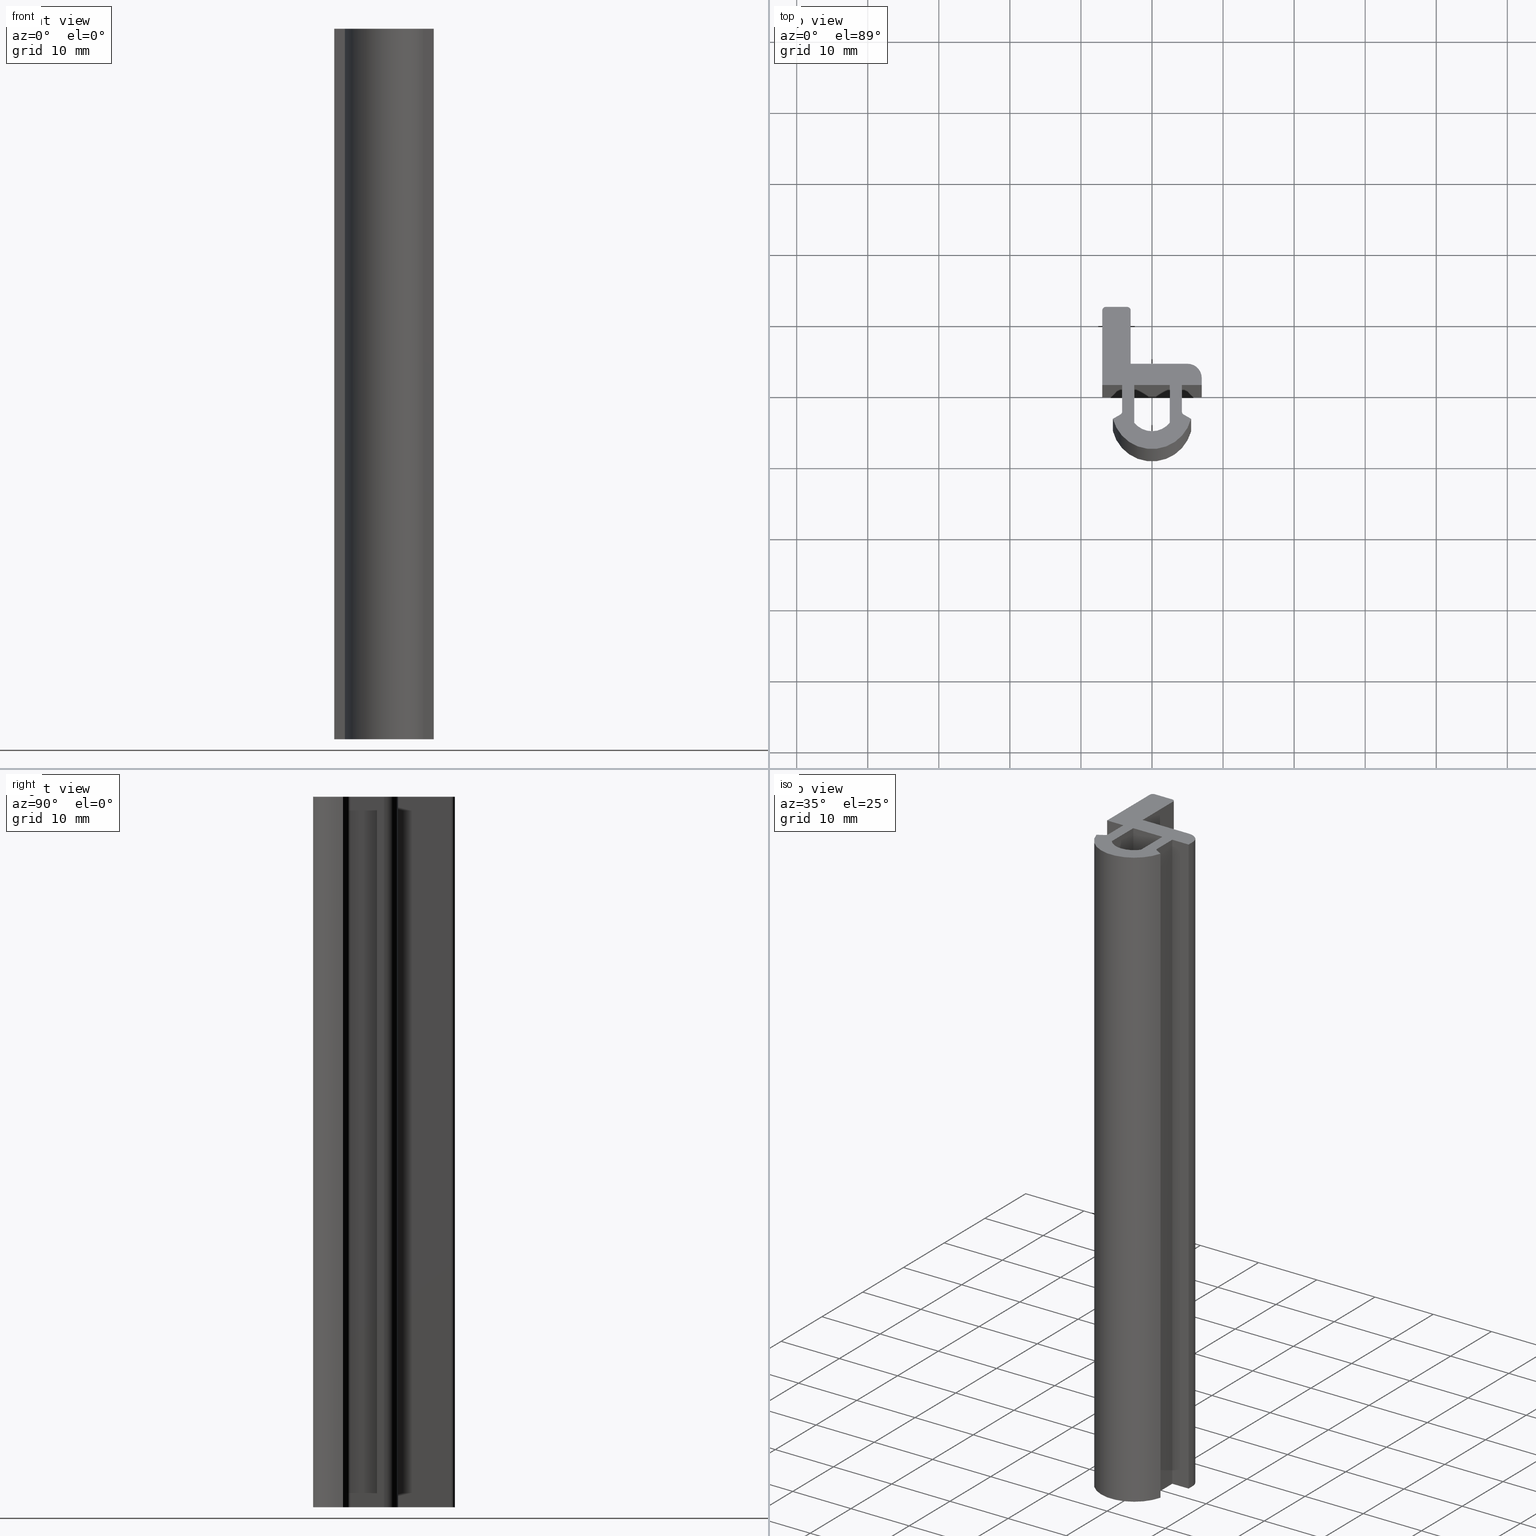
[diagram: canonical four-view strip — front | top / right | iso, engineering-drawing reading convention]
A machine part, canonical four-view strip (front | top / right | iso — engineering-drawing reading convention). The complete STEP part file that produces these views, byte-faithful:
ISO-10303-21;
HEADER;
/* Generated by software containing ST-Developer
 * from STEP Tools, Inc. (www.steptools.com) 
 */

FILE_DESCRIPTION(
/* description */ ('GUARNIZIONE GRIGIA'),
/* implementation_level */ '2;1');

FILE_NAME(
/* name */ 
'Q:\\Catalogo\\2_Accessori Dierre\\Per Download Web e catalogo cartace
o\\CATALOGO GUARNIZIONI E PROFILI\\PAGINA 82\\DGUCA0000047.stp',
/* time_stamp */ '2018-11-08T15:02:06+01:00',
/* author */ ('fzagni'),
/* organization */ (''),
/* preprocessor_version */ 'ST-DEVELOPER v16.1',
/* originating_system */ 'Autodesk Inventor 2016',
/* authorisation */ '');

FILE_SCHEMA (('AUTOMOTIVE_DESIGN { 1 0 10303 214 3 1 1 }'));
ENDSEC;

DATA;
#10=MECHANICAL_DESIGN_GEOMETRIC_PRESENTATION_REPRESENTATION('',(#13),#750);
#11=SHAPE_REPRESENTATION_RELATIONSHIP('SRR','None',#759,#12);
#12=ADVANCED_BREP_SHAPE_REPRESENTATION('',(#14),#749);
#13=STYLED_ITEM('',(#768),#14);
#14=MANIFOLD_SOLID_BREP('Solido1',#454);
#15=FACE_BOUND('',#62,.T.);
#16=FACE_BOUND('',#80,.T.);
#17=PLANE('',#459);
#18=PLANE('',#463);
#19=PLANE('',#467);
#20=PLANE('',#472);
#21=PLANE('',#477);
#22=PLANE('',#478);
#23=PLANE('',#479);
#24=PLANE('',#482);
#25=PLANE('',#483);
#26=PLANE('',#484);
#27=PLANE('',#485);
#28=PLANE('',#486);
#29=PLANE('',#489);
#30=PLANE('',#490);
#31=PLANE('',#491);
#32=PLANE('',#492);
#33=FACE_OUTER_BOUND('',#56,.T.);
#34=FACE_OUTER_BOUND('',#57,.T.);
#35=FACE_OUTER_BOUND('',#58,.T.);
#36=FACE_OUTER_BOUND('',#59,.T.);
#37=FACE_OUTER_BOUND('',#60,.T.);
#38=FACE_OUTER_BOUND('',#61,.T.);
#39=FACE_OUTER_BOUND('',#63,.T.);
#40=FACE_OUTER_BOUND('',#64,.T.);
#41=FACE_OUTER_BOUND('',#65,.T.);
#42=FACE_OUTER_BOUND('',#66,.T.);
#43=FACE_OUTER_BOUND('',#67,.T.);
#44=FACE_OUTER_BOUND('',#68,.T.);
#45=FACE_OUTER_BOUND('',#69,.T.);
#46=FACE_OUTER_BOUND('',#70,.T.);
#47=FACE_OUTER_BOUND('',#71,.T.);
#48=FACE_OUTER_BOUND('',#72,.T.);
#49=FACE_OUTER_BOUND('',#73,.T.);
#50=FACE_OUTER_BOUND('',#74,.T.);
#51=FACE_OUTER_BOUND('',#75,.T.);
#52=FACE_OUTER_BOUND('',#76,.T.);
#53=FACE_OUTER_BOUND('',#77,.T.);
#54=FACE_OUTER_BOUND('',#78,.T.);
#55=FACE_OUTER_BOUND('',#79,.T.);
#56=EDGE_LOOP('',(#298,#299,#300,#301));
#57=EDGE_LOOP('',(#302,#303,#304,#305));
#58=EDGE_LOOP('',(#306,#307,#308,#309));
#59=EDGE_LOOP('',(#310,#311,#312,#313));
#60=EDGE_LOOP('',(#314,#315,#316,#317));
#61=EDGE_LOOP('',(#318,#319,#320,#321,#322,#323,#324,#325,#326,#327,#328,
#329,#330,#331,#332,#333,#334));
#62=EDGE_LOOP('',(#335,#336,#337,#338));
#63=EDGE_LOOP('',(#339,#340,#341,#342));
#64=EDGE_LOOP('',(#343,#344,#345,#346));
#65=EDGE_LOOP('',(#347,#348,#349,#350));
#66=EDGE_LOOP('',(#351,#352,#353,#354));
#67=EDGE_LOOP('',(#355,#356,#357,#358));
#68=EDGE_LOOP('',(#359,#360,#361,#362));
#69=EDGE_LOOP('',(#363,#364,#365,#366));
#70=EDGE_LOOP('',(#367,#368,#369,#370));
#71=EDGE_LOOP('',(#371,#372,#373,#374));
#72=EDGE_LOOP('',(#375,#376,#377,#378));
#73=EDGE_LOOP('',(#379,#380,#381,#382));
#74=EDGE_LOOP('',(#383,#384,#385,#386));
#75=EDGE_LOOP('',(#387,#388,#389,#390));
#76=EDGE_LOOP('',(#391,#392,#393,#394));
#77=EDGE_LOOP('',(#395,#396,#397,#398));
#78=EDGE_LOOP('',(#399,#400,#401,#402));
#79=EDGE_LOOP('',(#403,#404,#405,#406,#407,#408,#409,#410,#411,#412,#413,
#414,#415,#416,#417,#418,#419));
#80=EDGE_LOOP('',(#420,#421,#422,#423));
#81=LINE('',#624,#130);
#82=LINE('',#627,#131);
#83=LINE('',#630,#132);
#84=LINE('',#632,#133);
#85=LINE('',#633,#134);
#86=LINE('',#639,#135);
#87=LINE('',#642,#136);
#88=LINE('',#645,#137);
#89=LINE('',#647,#138);
#90=LINE('',#648,#139);
#91=LINE('',#654,#140);
#92=LINE('',#657,#141);
#93=LINE('',#660,#142);
#94=LINE('',#664,#143);
#95=LINE('',#666,#144);
#96=LINE('',#670,#145);
#97=LINE('',#671,#146);
#98=LINE('',#673,#147);
#99=LINE('',#676,#148);
#100=LINE('',#678,#149);
#101=LINE('',#679,#150);
#102=LINE('',#682,#151);
#103=LINE('',#684,#152);
#104=LINE('',#687,#153);
#105=LINE('',#690,#154);
#106=LINE('',#691,#155);
#107=LINE('',#695,#156);
#108=LINE('',#700,#157);
#109=LINE('',#701,#158);
#110=LINE('',#704,#159);
#111=LINE('',#705,#160);
#112=LINE('',#708,#161);
#113=LINE('',#710,#162);
#114=LINE('',#711,#163);
#115=LINE('',#714,#164);
#116=LINE('',#715,#165);
#117=LINE('',#718,#166);
#118=LINE('',#721,#167);
#119=LINE('',#724,#168);
#120=LINE('',#725,#169);
#121=LINE('',#727,#170);
#122=LINE('',#729,#171);
#123=LINE('',#732,#172);
#124=LINE('',#733,#173);
#125=LINE('',#738,#174);
#126=LINE('',#739,#175);
#127=LINE('',#742,#176);
#128=LINE('',#743,#177);
#129=LINE('',#745,#178);
#130=VECTOR('',#499,100.);
#131=VECTOR('',#502,100.);
#132=VECTOR('',#505,1.21243556529822);
#133=VECTOR('',#506,100.);
#134=VECTOR('',#507,1.21243556529822);
#135=VECTOR('',#512,100.);
#136=VECTOR('',#515,100.);
#137=VECTOR('',#518,3.71132486540519);
#138=VECTOR('',#519,100.);
#139=VECTOR('',#520,3.71132486540519);
#140=VECTOR('',#525,100.);
#141=VECTOR('',#528,100.);
#142=VECTOR('',#531,3.);
#143=VECTOR('',#534,7.5);
#144=VECTOR('',#535,8.);
#145=VECTOR('',#538,1.);
#146=VECTOR('',#539,2.8);
#147=VECTOR('',#540,1.21243556529821);
#148=VECTOR('',#543,3.71132486540519);
#149=VECTOR('',#544,2.8);
#150=VECTOR('',#545,10.5);
#151=VECTOR('',#546,5.);
#152=VECTOR('',#547,5.28777142304358);
#153=VECTOR('',#550,5.28777142304358);
#154=VECTOR('',#553,3.);
#155=VECTOR('',#554,100.);
#156=VECTOR('',#559,100.);
#157=VECTOR('',#564,100.);
#158=VECTOR('',#565,100.);
#159=VECTOR('',#568,1.);
#160=VECTOR('',#569,100.);
#161=VECTOR('',#572,100.);
#162=VECTOR('',#573,5.);
#163=VECTOR('',#574,100.);
#164=VECTOR('',#577,100.);
#165=VECTOR('',#578,5.28777142304358);
#166=VECTOR('',#581,100.);
#167=VECTOR('',#586,5.28777142304358);
#168=VECTOR('',#589,7.5);
#169=VECTOR('',#590,100.);
#170=VECTOR('',#593,8.);
#171=VECTOR('',#596,2.8);
#172=VECTOR('',#599,1.21243556529821);
#173=VECTOR('',#600,100.);
#174=VECTOR('',#607,3.71132486540519);
#175=VECTOR('',#608,100.);
#176=VECTOR('',#611,2.8);
#177=VECTOR('',#612,100.);
#178=VECTOR('',#615,10.5);
#179=CIRCLE('',#457,0.5);
#180=CIRCLE('',#458,0.5);
#181=CIRCLE('',#461,0.5);
#182=CIRCLE('',#462,0.5);
#183=CIRCLE('',#465,0.5);
#184=CIRCLE('',#466,0.5);
#185=CIRCLE('',#468,0.5);
#186=CIRCLE('',#469,2.);
#187=CIRCLE('',#470,5.68401094873188);
#188=CIRCLE('',#471,3.18401094873187);
#189=CIRCLE('',#474,0.5);
#190=CIRCLE('',#476,2.);
#191=CIRCLE('',#481,3.18401094873187);
#192=CIRCLE('',#488,5.68401094873188);
#193=VERTEX_POINT('',#620);
#194=VERTEX_POINT('',#621);
#195=VERTEX_POINT('',#623);
#196=VERTEX_POINT('',#625);
#197=VERTEX_POINT('',#629);
#198=VERTEX_POINT('',#631);
#199=VERTEX_POINT('',#635);
#200=VERTEX_POINT('',#636);
#201=VERTEX_POINT('',#638);
#202=VERTEX_POINT('',#640);
#203=VERTEX_POINT('',#644);
#204=VERTEX_POINT('',#646);
#205=VERTEX_POINT('',#650);
#206=VERTEX_POINT('',#651);
#207=VERTEX_POINT('',#653);
#208=VERTEX_POINT('',#655);
#209=VERTEX_POINT('',#659);
#210=VERTEX_POINT('',#661);
#211=VERTEX_POINT('',#663);
#212=VERTEX_POINT('',#665);
#213=VERTEX_POINT('',#667);
#214=VERTEX_POINT('',#669);
#215=VERTEX_POINT('',#672);
#216=VERTEX_POINT('',#675);
#217=VERTEX_POINT('',#677);
#218=VERTEX_POINT('',#680);
#219=VERTEX_POINT('',#681);
#220=VERTEX_POINT('',#683);
#221=VERTEX_POINT('',#685);
#222=VERTEX_POINT('',#689);
#223=VERTEX_POINT('',#693);
#224=VERTEX_POINT('',#697);
#225=VERTEX_POINT('',#698);
#226=VERTEX_POINT('',#703);
#227=VERTEX_POINT('',#707);
#228=VERTEX_POINT('',#709);
#229=VERTEX_POINT('',#713);
#230=VERTEX_POINT('',#717);
#231=VERTEX_POINT('',#723);
#232=VERTEX_POINT('',#731);
#233=VERTEX_POINT('',#737);
#234=VERTEX_POINT('',#741);
#235=EDGE_CURVE('',#193,#194,#179,.T.);
#236=EDGE_CURVE('',#194,#195,#81,.T.);
#237=EDGE_CURVE('',#195,#196,#180,.T.);
#238=EDGE_CURVE('',#196,#193,#82,.T.);
#239=EDGE_CURVE('',#197,#194,#83,.T.);
#240=EDGE_CURVE('',#197,#198,#84,.T.);
#241=EDGE_CURVE('',#195,#198,#85,.T.);
#242=EDGE_CURVE('',#199,#200,#181,.T.);
#243=EDGE_CURVE('',#200,#201,#86,.T.);
#244=EDGE_CURVE('',#201,#202,#182,.T.);
#245=EDGE_CURVE('',#202,#199,#87,.T.);
#246=EDGE_CURVE('',#203,#200,#88,.T.);
#247=EDGE_CURVE('',#203,#204,#89,.T.);
#248=EDGE_CURVE('',#201,#204,#90,.T.);
#249=EDGE_CURVE('',#205,#206,#183,.T.);
#250=EDGE_CURVE('',#206,#207,#91,.T.);
#251=EDGE_CURVE('',#207,#208,#184,.T.);
#252=EDGE_CURVE('',#208,#205,#92,.T.);
#253=EDGE_CURVE('',#207,#209,#93,.T.);
#254=EDGE_CURVE('',#210,#209,#185,.T.);
#255=EDGE_CURVE('',#210,#211,#94,.T.);
#256=EDGE_CURVE('',#211,#212,#95,.T.);
#257=EDGE_CURVE('',#213,#212,#186,.T.);
#258=EDGE_CURVE('',#213,#214,#96,.T.);
#259=EDGE_CURVE('',#214,#203,#97,.T.);
#260=EDGE_CURVE('',#199,#215,#98,.T.);
#261=EDGE_CURVE('',#215,#197,#187,.T.);
#262=EDGE_CURVE('',#193,#216,#99,.T.);
#263=EDGE_CURVE('',#216,#217,#100,.T.);
#264=EDGE_CURVE('',#217,#208,#101,.T.);
#265=EDGE_CURVE('',#218,#219,#102,.T.);
#266=EDGE_CURVE('',#219,#220,#103,.T.);
#267=EDGE_CURVE('',#220,#221,#188,.T.);
#268=EDGE_CURVE('',#221,#218,#104,.T.);
#269=EDGE_CURVE('',#222,#206,#105,.T.);
#270=EDGE_CURVE('',#209,#222,#106,.T.);
#271=EDGE_CURVE('',#222,#223,#189,.T.);
#272=EDGE_CURVE('',#223,#210,#107,.T.);
#273=EDGE_CURVE('',#224,#225,#190,.T.);
#274=EDGE_CURVE('',#225,#213,#108,.T.);
#275=EDGE_CURVE('',#212,#224,#109,.T.);
#276=EDGE_CURVE('',#226,#225,#110,.T.);
#277=EDGE_CURVE('',#214,#226,#111,.T.);
#278=EDGE_CURVE('',#218,#227,#112,.T.);
#279=EDGE_CURVE('',#228,#227,#113,.T.);
#280=EDGE_CURVE('',#219,#228,#114,.T.);
#281=EDGE_CURVE('',#221,#229,#115,.T.);
#282=EDGE_CURVE('',#227,#229,#116,.T.);
#283=EDGE_CURVE('',#220,#230,#117,.T.);
#284=EDGE_CURVE('',#229,#230,#191,.T.);
#285=EDGE_CURVE('',#230,#228,#118,.T.);
#286=EDGE_CURVE('',#231,#223,#119,.T.);
#287=EDGE_CURVE('',#211,#231,#120,.T.);
#288=EDGE_CURVE('',#224,#231,#121,.T.);
#289=EDGE_CURVE('',#204,#226,#122,.T.);
#290=EDGE_CURVE('',#232,#202,#123,.T.);
#291=EDGE_CURVE('',#215,#232,#124,.T.);
#292=EDGE_CURVE('',#198,#232,#192,.T.);
#293=EDGE_CURVE('',#233,#196,#125,.T.);
#294=EDGE_CURVE('',#216,#233,#126,.T.);
#295=EDGE_CURVE('',#234,#233,#127,.T.);
#296=EDGE_CURVE('',#217,#234,#128,.T.);
#297=EDGE_CURVE('',#205,#234,#129,.T.);
#298=ORIENTED_EDGE('',*,*,#235,.T.);
#299=ORIENTED_EDGE('',*,*,#236,.T.);
#300=ORIENTED_EDGE('',*,*,#237,.T.);
#301=ORIENTED_EDGE('',*,*,#238,.T.);
#302=ORIENTED_EDGE('',*,*,#236,.F.);
#303=ORIENTED_EDGE('',*,*,#239,.F.);
#304=ORIENTED_EDGE('',*,*,#240,.T.);
#305=ORIENTED_EDGE('',*,*,#241,.F.);
#306=ORIENTED_EDGE('',*,*,#242,.T.);
#307=ORIENTED_EDGE('',*,*,#243,.T.);
#308=ORIENTED_EDGE('',*,*,#244,.T.);
#309=ORIENTED_EDGE('',*,*,#245,.T.);
#310=ORIENTED_EDGE('',*,*,#243,.F.);
#311=ORIENTED_EDGE('',*,*,#246,.F.);
#312=ORIENTED_EDGE('',*,*,#247,.T.);
#313=ORIENTED_EDGE('',*,*,#248,.F.);
#314=ORIENTED_EDGE('',*,*,#249,.T.);
#315=ORIENTED_EDGE('',*,*,#250,.T.);
#316=ORIENTED_EDGE('',*,*,#251,.T.);
#317=ORIENTED_EDGE('',*,*,#252,.T.);
#318=ORIENTED_EDGE('',*,*,#251,.F.);
#319=ORIENTED_EDGE('',*,*,#253,.T.);
#320=ORIENTED_EDGE('',*,*,#254,.F.);
#321=ORIENTED_EDGE('',*,*,#255,.T.);
#322=ORIENTED_EDGE('',*,*,#256,.T.);
#323=ORIENTED_EDGE('',*,*,#257,.F.);
#324=ORIENTED_EDGE('',*,*,#258,.T.);
#325=ORIENTED_EDGE('',*,*,#259,.T.);
#326=ORIENTED_EDGE('',*,*,#246,.T.);
#327=ORIENTED_EDGE('',*,*,#242,.F.);
#328=ORIENTED_EDGE('',*,*,#260,.T.);
#329=ORIENTED_EDGE('',*,*,#261,.T.);
#330=ORIENTED_EDGE('',*,*,#239,.T.);
#331=ORIENTED_EDGE('',*,*,#235,.F.);
#332=ORIENTED_EDGE('',*,*,#262,.T.);
#333=ORIENTED_EDGE('',*,*,#263,.T.);
#334=ORIENTED_EDGE('',*,*,#264,.T.);
#335=ORIENTED_EDGE('',*,*,#265,.T.);
#336=ORIENTED_EDGE('',*,*,#266,.T.);
#337=ORIENTED_EDGE('',*,*,#267,.T.);
#338=ORIENTED_EDGE('',*,*,#268,.T.);
#339=ORIENTED_EDGE('',*,*,#250,.F.);
#340=ORIENTED_EDGE('',*,*,#269,.F.);
#341=ORIENTED_EDGE('',*,*,#270,.F.);
#342=ORIENTED_EDGE('',*,*,#253,.F.);
#343=ORIENTED_EDGE('',*,*,#271,.T.);
#344=ORIENTED_EDGE('',*,*,#272,.T.);
#345=ORIENTED_EDGE('',*,*,#254,.T.);
#346=ORIENTED_EDGE('',*,*,#270,.T.);
#347=ORIENTED_EDGE('',*,*,#273,.T.);
#348=ORIENTED_EDGE('',*,*,#274,.T.);
#349=ORIENTED_EDGE('',*,*,#257,.T.);
#350=ORIENTED_EDGE('',*,*,#275,.T.);
#351=ORIENTED_EDGE('',*,*,#274,.F.);
#352=ORIENTED_EDGE('',*,*,#276,.F.);
#353=ORIENTED_EDGE('',*,*,#277,.F.);
#354=ORIENTED_EDGE('',*,*,#258,.F.);
#355=ORIENTED_EDGE('',*,*,#265,.F.);
#356=ORIENTED_EDGE('',*,*,#278,.T.);
#357=ORIENTED_EDGE('',*,*,#279,.F.);
#358=ORIENTED_EDGE('',*,*,#280,.F.);
#359=ORIENTED_EDGE('',*,*,#268,.F.);
#360=ORIENTED_EDGE('',*,*,#281,.T.);
#361=ORIENTED_EDGE('',*,*,#282,.F.);
#362=ORIENTED_EDGE('',*,*,#278,.F.);
#363=ORIENTED_EDGE('',*,*,#267,.F.);
#364=ORIENTED_EDGE('',*,*,#283,.T.);
#365=ORIENTED_EDGE('',*,*,#284,.F.);
#366=ORIENTED_EDGE('',*,*,#281,.F.);
#367=ORIENTED_EDGE('',*,*,#266,.F.);
#368=ORIENTED_EDGE('',*,*,#280,.T.);
#369=ORIENTED_EDGE('',*,*,#285,.F.);
#370=ORIENTED_EDGE('',*,*,#283,.F.);
#371=ORIENTED_EDGE('',*,*,#272,.F.);
#372=ORIENTED_EDGE('',*,*,#286,.F.);
#373=ORIENTED_EDGE('',*,*,#287,.F.);
#374=ORIENTED_EDGE('',*,*,#255,.F.);
#375=ORIENTED_EDGE('',*,*,#275,.F.);
#376=ORIENTED_EDGE('',*,*,#256,.F.);
#377=ORIENTED_EDGE('',*,*,#287,.T.);
#378=ORIENTED_EDGE('',*,*,#288,.F.);
#379=ORIENTED_EDGE('',*,*,#259,.F.);
#380=ORIENTED_EDGE('',*,*,#277,.T.);
#381=ORIENTED_EDGE('',*,*,#289,.F.);
#382=ORIENTED_EDGE('',*,*,#247,.F.);
#383=ORIENTED_EDGE('',*,*,#245,.F.);
#384=ORIENTED_EDGE('',*,*,#290,.F.);
#385=ORIENTED_EDGE('',*,*,#291,.F.);
#386=ORIENTED_EDGE('',*,*,#260,.F.);
#387=ORIENTED_EDGE('',*,*,#261,.F.);
#388=ORIENTED_EDGE('',*,*,#291,.T.);
#389=ORIENTED_EDGE('',*,*,#292,.F.);
#390=ORIENTED_EDGE('',*,*,#240,.F.);
#391=ORIENTED_EDGE('',*,*,#238,.F.);
#392=ORIENTED_EDGE('',*,*,#293,.F.);
#393=ORIENTED_EDGE('',*,*,#294,.F.);
#394=ORIENTED_EDGE('',*,*,#262,.F.);
#395=ORIENTED_EDGE('',*,*,#263,.F.);
#396=ORIENTED_EDGE('',*,*,#294,.T.);
#397=ORIENTED_EDGE('',*,*,#295,.F.);
#398=ORIENTED_EDGE('',*,*,#296,.F.);
#399=ORIENTED_EDGE('',*,*,#252,.F.);
#400=ORIENTED_EDGE('',*,*,#264,.F.);
#401=ORIENTED_EDGE('',*,*,#296,.T.);
#402=ORIENTED_EDGE('',*,*,#297,.F.);
#403=ORIENTED_EDGE('',*,*,#249,.F.);
#404=ORIENTED_EDGE('',*,*,#297,.T.);
#405=ORIENTED_EDGE('',*,*,#295,.T.);
#406=ORIENTED_EDGE('',*,*,#293,.T.);
#407=ORIENTED_EDGE('',*,*,#237,.F.);
#408=ORIENTED_EDGE('',*,*,#241,.T.);
#409=ORIENTED_EDGE('',*,*,#292,.T.);
#410=ORIENTED_EDGE('',*,*,#290,.T.);
#411=ORIENTED_EDGE('',*,*,#244,.F.);
#412=ORIENTED_EDGE('',*,*,#248,.T.);
#413=ORIENTED_EDGE('',*,*,#289,.T.);
#414=ORIENTED_EDGE('',*,*,#276,.T.);
#415=ORIENTED_EDGE('',*,*,#273,.F.);
#416=ORIENTED_EDGE('',*,*,#288,.T.);
#417=ORIENTED_EDGE('',*,*,#286,.T.);
#418=ORIENTED_EDGE('',*,*,#271,.F.);
#419=ORIENTED_EDGE('',*,*,#269,.T.);
#420=ORIENTED_EDGE('',*,*,#279,.T.);
#421=ORIENTED_EDGE('',*,*,#282,.T.);
#422=ORIENTED_EDGE('',*,*,#284,.T.);
#423=ORIENTED_EDGE('',*,*,#285,.T.);
#424=CYLINDRICAL_SURFACE('',#456,0.5);
#425=CYLINDRICAL_SURFACE('',#460,0.5);
#426=CYLINDRICAL_SURFACE('',#464,0.5);
#427=CYLINDRICAL_SURFACE('',#473,0.5);
#428=CYLINDRICAL_SURFACE('',#475,2.);
#429=CYLINDRICAL_SURFACE('',#480,3.18401094873187);
#430=CYLINDRICAL_SURFACE('',#487,5.68401094873188);
#431=ADVANCED_FACE('',(#33),#424,.F.);
#432=ADVANCED_FACE('',(#34),#17,.T.);
#433=ADVANCED_FACE('',(#35),#425,.F.);
#434=ADVANCED_FACE('',(#36),#18,.T.);
#435=ADVANCED_FACE('',(#37),#426,.T.);
#436=ADVANCED_FACE('',(#38,#15),#19,.F.);
#437=ADVANCED_FACE('',(#39),#20,.T.);
#438=ADVANCED_FACE('',(#40),#427,.T.);
#439=ADVANCED_FACE('',(#41),#428,.T.);
#440=ADVANCED_FACE('',(#42),#21,.T.);
#441=ADVANCED_FACE('',(#43),#22,.F.);
#442=ADVANCED_FACE('',(#44),#23,.F.);
#443=ADVANCED_FACE('',(#45),#429,.F.);
#444=ADVANCED_FACE('',(#46),#24,.F.);
#445=ADVANCED_FACE('',(#47),#25,.T.);
#446=ADVANCED_FACE('',(#48),#26,.T.);
#447=ADVANCED_FACE('',(#49),#27,.T.);
#448=ADVANCED_FACE('',(#50),#28,.T.);
#449=ADVANCED_FACE('',(#51),#430,.T.);
#450=ADVANCED_FACE('',(#52),#29,.T.);
#451=ADVANCED_FACE('',(#53),#30,.T.);
#452=ADVANCED_FACE('',(#54),#31,.T.);
#453=ADVANCED_FACE('',(#55,#16),#32,.T.);
#454=CLOSED_SHELL('',(#431,#432,#433,#434,#435,#436,#437,#438,#439,#440,
#441,#442,#443,#444,#445,#446,#447,#448,#449,#450,#451,#452,#453));
#455=AXIS2_PLACEMENT_3D('placement',#618,#493,#494);
#456=AXIS2_PLACEMENT_3D('',#619,#495,#496);
#457=AXIS2_PLACEMENT_3D('',#622,#497,#498);
#458=AXIS2_PLACEMENT_3D('',#626,#500,#501);
#459=AXIS2_PLACEMENT_3D('',#628,#503,#504);
#460=AXIS2_PLACEMENT_3D('',#634,#508,#509);
#461=AXIS2_PLACEMENT_3D('',#637,#510,#511);
#462=AXIS2_PLACEMENT_3D('',#641,#513,#514);
#463=AXIS2_PLACEMENT_3D('',#643,#516,#517);
#464=AXIS2_PLACEMENT_3D('',#649,#521,#522);
#465=AXIS2_PLACEMENT_3D('',#652,#523,#524);
#466=AXIS2_PLACEMENT_3D('',#656,#526,#527);
#467=AXIS2_PLACEMENT_3D('',#658,#529,#530);
#468=AXIS2_PLACEMENT_3D('',#662,#532,#533);
#469=AXIS2_PLACEMENT_3D('',#668,#536,#537);
#470=AXIS2_PLACEMENT_3D('',#674,#541,#542);
#471=AXIS2_PLACEMENT_3D('',#686,#548,#549);
#472=AXIS2_PLACEMENT_3D('',#688,#551,#552);
#473=AXIS2_PLACEMENT_3D('',#692,#555,#556);
#474=AXIS2_PLACEMENT_3D('',#694,#557,#558);
#475=AXIS2_PLACEMENT_3D('',#696,#560,#561);
#476=AXIS2_PLACEMENT_3D('',#699,#562,#563);
#477=AXIS2_PLACEMENT_3D('',#702,#566,#567);
#478=AXIS2_PLACEMENT_3D('',#706,#570,#571);
#479=AXIS2_PLACEMENT_3D('',#712,#575,#576);
#480=AXIS2_PLACEMENT_3D('',#716,#579,#580);
#481=AXIS2_PLACEMENT_3D('',#719,#582,#583);
#482=AXIS2_PLACEMENT_3D('',#720,#584,#585);
#483=AXIS2_PLACEMENT_3D('',#722,#587,#588);
#484=AXIS2_PLACEMENT_3D('',#726,#591,#592);
#485=AXIS2_PLACEMENT_3D('',#728,#594,#595);
#486=AXIS2_PLACEMENT_3D('',#730,#597,#598);
#487=AXIS2_PLACEMENT_3D('',#734,#601,#602);
#488=AXIS2_PLACEMENT_3D('',#735,#603,#604);
#489=AXIS2_PLACEMENT_3D('',#736,#605,#606);
#490=AXIS2_PLACEMENT_3D('',#740,#609,#610);
#491=AXIS2_PLACEMENT_3D('',#744,#613,#614);
#492=AXIS2_PLACEMENT_3D('',#746,#616,#617);
#493=DIRECTION('axis',(0.,0.,1.));
#494=DIRECTION('refdir',(1.,0.,0.));
#495=DIRECTION('center_axis',(0.,0.,1.));
#496=DIRECTION('ref_axis',(0.866025403784439,-0.5,0.));
#497=DIRECTION('center_axis',(0.,0.,-1.));
#498=DIRECTION('ref_axis',(0.866025403784439,-0.5,0.));
#499=DIRECTION('',(0.,0.,1.));
#500=DIRECTION('center_axis',(0.,0.,1.));
#501=DIRECTION('ref_axis',(0.866025403784439,-0.5,0.));
#502=DIRECTION('',(0.,0.,-1.));
#503=DIRECTION('center_axis',(-0.5,0.866025403784439,0.));
#504=DIRECTION('ref_axis',(-0.866025403784439,-0.5,0.));
#505=DIRECTION('',(0.866025403784439,0.5,0.));
#506=DIRECTION('',(0.,0.,1.));
#507=DIRECTION('',(-0.866025403784439,-0.5,0.));
#508=DIRECTION('center_axis',(0.,0.,1.));
#509=DIRECTION('ref_axis',(-0.866025403784439,-0.5,0.));
#510=DIRECTION('center_axis',(0.,0.,-1.));
#511=DIRECTION('ref_axis',(-0.866025403784439,-0.5,0.));
#512=DIRECTION('',(0.,0.,1.));
#513=DIRECTION('center_axis',(0.,0.,1.));
#514=DIRECTION('ref_axis',(-0.866025403784439,-0.5,0.));
#515=DIRECTION('',(0.,0.,-1.));
#516=DIRECTION('center_axis',(1.,0.,0.));
#517=DIRECTION('ref_axis',(0.,1.,0.));
#518=DIRECTION('',(0.,-1.,0.));
#519=DIRECTION('',(0.,0.,1.));
#520=DIRECTION('',(0.,1.,0.));
#521=DIRECTION('center_axis',(0.,0.,1.));
#522=DIRECTION('ref_axis',(-0.707106781186549,0.707106781186546,0.));
#523=DIRECTION('center_axis',(0.,0.,-1.));
#524=DIRECTION('ref_axis',(-0.707106781186549,0.707106781186546,0.));
#525=DIRECTION('',(0.,0.,-1.));
#526=DIRECTION('center_axis',(0.,0.,1.));
#527=DIRECTION('ref_axis',(-0.707106781186549,0.707106781186546,0.));
#528=DIRECTION('',(0.,0.,1.));
#529=DIRECTION('center_axis',(0.,0.,1.));
#530=DIRECTION('ref_axis',(1.,0.,0.));
#531=DIRECTION('',(1.,0.,0.));
#532=DIRECTION('center_axis',(0.,0.,1.));
#533=DIRECTION('ref_axis',(0.707106781186546,0.707106781186549,0.));
#534=DIRECTION('',(0.,-1.,0.));
#535=DIRECTION('',(1.,0.,0.));
#536=DIRECTION('center_axis',(0.,0.,1.));
#537=DIRECTION('ref_axis',(0.707106781186548,0.707106781186547,0.));
#538=DIRECTION('',(0.,-1.,0.));
#539=DIRECTION('',(-1.,0.,0.));
#540=DIRECTION('',(0.866025403784438,-0.5,0.));
#541=DIRECTION('center_axis',(0.,0.,-1.));
#542=DIRECTION('ref_axis',(0.967626566804392,0.25238626589881,0.));
#543=DIRECTION('',(-1.38777878078145E-16,1.,0.));
#544=DIRECTION('',(-1.,0.,0.));
#545=DIRECTION('',(0.,1.,0.));
#546=DIRECTION('',(-1.,0.,0.));
#547=DIRECTION('',(0.,-1.,0.));
#548=DIRECTION('center_axis',(0.,0.,1.));
#549=DIRECTION('ref_axis',(0.785173179443902,0.619276253607349,0.));
#550=DIRECTION('',(5.24901199296794E-17,1.,0.));
#551=DIRECTION('center_axis',(0.,1.,0.));
#552=DIRECTION('ref_axis',(-1.,0.,0.));
#553=DIRECTION('',(-1.,0.,0.));
#554=DIRECTION('',(0.,0.,1.));
#555=DIRECTION('center_axis',(0.,0.,1.));
#556=DIRECTION('ref_axis',(0.707106781186546,0.707106781186549,0.));
#557=DIRECTION('center_axis',(0.,0.,-1.));
#558=DIRECTION('ref_axis',(0.707106781186546,0.707106781186549,0.));
#559=DIRECTION('',(0.,0.,-1.));
#560=DIRECTION('center_axis',(0.,0.,1.));
#561=DIRECTION('ref_axis',(0.707106781186548,0.707106781186547,0.));
#562=DIRECTION('center_axis',(0.,0.,-1.));
#563=DIRECTION('ref_axis',(0.707106781186548,0.707106781186547,0.));
#564=DIRECTION('',(0.,0.,-1.));
#565=DIRECTION('',(0.,0.,1.));
#566=DIRECTION('center_axis',(1.,0.,0.));
#567=DIRECTION('ref_axis',(0.,1.,0.));
#568=DIRECTION('',(0.,1.,0.));
#569=DIRECTION('',(0.,0.,1.));
#570=DIRECTION('center_axis',(0.,1.,0.));
#571=DIRECTION('ref_axis',(-1.,0.,0.));
#572=DIRECTION('',(0.,0.,1.));
#573=DIRECTION('',(1.,0.,0.));
#574=DIRECTION('',(0.,0.,1.));
#575=DIRECTION('center_axis',(1.,-5.24901199296794E-17,0.));
#576=DIRECTION('ref_axis',(4.44089209850063E-17,1.,0.));
#577=DIRECTION('',(0.,0.,1.));
#578=DIRECTION('',(-5.24901199296794E-17,-1.,0.));
#579=DIRECTION('center_axis',(0.,0.,1.));
#580=DIRECTION('ref_axis',(0.785173179443902,0.619276253607349,0.));
#581=DIRECTION('',(0.,0.,1.));
#582=DIRECTION('center_axis',(0.,0.,-1.));
#583=DIRECTION('ref_axis',(0.785173179443902,0.619276253607349,0.));
#584=DIRECTION('center_axis',(-1.,0.,0.));
#585=DIRECTION('ref_axis',(0.,-1.,0.));
#586=DIRECTION('',(0.,1.,0.));
#587=DIRECTION('center_axis',(1.,0.,0.));
#588=DIRECTION('ref_axis',(0.,1.,0.));
#589=DIRECTION('',(0.,1.,0.));
#590=DIRECTION('',(0.,0.,1.));
#591=DIRECTION('center_axis',(0.,1.,0.));
#592=DIRECTION('ref_axis',(-1.,0.,0.));
#593=DIRECTION('',(-1.,0.,0.));
#594=DIRECTION('center_axis',(0.,-1.,0.));
#595=DIRECTION('ref_axis',(1.,0.,0.));
#596=DIRECTION('',(1.,0.,0.));
#597=DIRECTION('center_axis',(0.5,0.866025403784439,0.));
#598=DIRECTION('ref_axis',(-0.866025403784438,0.5,0.));
#599=DIRECTION('',(-0.866025403784438,0.5,0.));
#600=DIRECTION('',(0.,0.,1.));
#601=DIRECTION('center_axis',(0.,0.,1.));
#602=DIRECTION('ref_axis',(0.967626566804392,0.25238626589881,0.));
#603=DIRECTION('center_axis',(0.,0.,1.));
#604=DIRECTION('ref_axis',(0.967626566804392,0.25238626589881,0.));
#605=DIRECTION('center_axis',(-1.,-1.38777878078145E-16,0.));
#606=DIRECTION('ref_axis',(1.77635683940025E-16,-1.,0.));
#607=DIRECTION('',(1.38777878078145E-16,-1.,0.));
#608=DIRECTION('',(0.,0.,1.));
#609=DIRECTION('center_axis',(0.,-1.,0.));
#610=DIRECTION('ref_axis',(1.,0.,0.));
#611=DIRECTION('',(1.,0.,0.));
#612=DIRECTION('',(0.,0.,1.));
#613=DIRECTION('center_axis',(-1.,0.,0.));
#614=DIRECTION('ref_axis',(0.,-1.,0.));
#615=DIRECTION('',(0.,-1.,0.));
#616=DIRECTION('center_axis',(0.,0.,1.));
#617=DIRECTION('ref_axis',(1.,0.,0.));
#618=CARTESIAN_POINT('',(0.,0.,0.));
#619=CARTESIAN_POINT('Origin',(-4.7,-3.71132486540519,0.));
#620=CARTESIAN_POINT('',(-4.2,-3.71132486540519,0.));
#621=CARTESIAN_POINT('',(-4.45,-4.14433756729741,0.));
#622=CARTESIAN_POINT('Origin',(-4.7,-3.71132486540519,0.));
#623=CARTESIAN_POINT('',(-4.45,-4.14433756729741,100.));
#624=CARTESIAN_POINT('',(-4.45,-4.14433756729741,0.));
#625=CARTESIAN_POINT('',(-4.2,-3.71132486540519,100.));
#626=CARTESIAN_POINT('Origin',(-4.7,-3.71132486540519,100.));
#627=CARTESIAN_POINT('',(-4.2,-3.71132486540519,0.));
#628=CARTESIAN_POINT('Origin',(-4.2,-4.,0.));
#629=CARTESIAN_POINT('',(-5.5,-4.75055534994651,0.));
#630=CARTESIAN_POINT('',(-5.5,-4.75055534994651,0.));
#631=CARTESIAN_POINT('',(-5.5,-4.75055534994651,100.));
#632=CARTESIAN_POINT('',(-5.5,-4.75055534994651,0.));
#633=CARTESIAN_POINT('',(-5.5,-4.75055534994651,100.));
#634=CARTESIAN_POINT('Origin',(4.7,-3.71132486540519,0.));
#635=CARTESIAN_POINT('',(4.45,-4.14433756729741,0.));
#636=CARTESIAN_POINT('',(4.2,-3.71132486540519,0.));
#637=CARTESIAN_POINT('Origin',(4.7,-3.71132486540519,0.));
#638=CARTESIAN_POINT('',(4.2,-3.71132486540519,100.));
#639=CARTESIAN_POINT('',(4.2,-3.71132486540519,0.));
#640=CARTESIAN_POINT('',(4.45,-4.14433756729741,100.));
#641=CARTESIAN_POINT('Origin',(4.7,-3.71132486540519,100.));
#642=CARTESIAN_POINT('',(4.45,-4.14433756729741,0.));
#643=CARTESIAN_POINT('Origin',(4.2,-4.,0.));
#644=CARTESIAN_POINT('',(4.2,0.,0.));
#645=CARTESIAN_POINT('',(4.2,0.,0.));
#646=CARTESIAN_POINT('',(4.2,0.,100.));
#647=CARTESIAN_POINT('',(4.2,0.,0.));
#648=CARTESIAN_POINT('',(4.2,0.,100.));
#649=CARTESIAN_POINT('Origin',(-6.5,10.5,0.));
#650=CARTESIAN_POINT('',(-7.,10.5,100.));
#651=CARTESIAN_POINT('',(-6.5,11.,100.));
#652=CARTESIAN_POINT('Origin',(-6.5,10.5,100.));
#653=CARTESIAN_POINT('',(-6.5,11.,0.));
#654=CARTESIAN_POINT('',(-6.5,11.,0.));
#655=CARTESIAN_POINT('',(-7.,10.5,0.));
#656=CARTESIAN_POINT('Origin',(-6.5,10.5,0.));
#657=CARTESIAN_POINT('',(-7.,10.5,0.));
#658=CARTESIAN_POINT('Origin',(-1.25353572710204,1.28134908684579,0.));
#659=CARTESIAN_POINT('',(-3.5,11.,0.));
#660=CARTESIAN_POINT('',(-7.,11.,0.));
#661=CARTESIAN_POINT('',(-3.,10.5,0.));
#662=CARTESIAN_POINT('Origin',(-3.5,10.5,0.));
#663=CARTESIAN_POINT('',(-3.,3.,0.));
#664=CARTESIAN_POINT('',(-3.,11.,0.));
#665=CARTESIAN_POINT('',(5.,3.,0.));
#666=CARTESIAN_POINT('',(-3.,3.,0.));
#667=CARTESIAN_POINT('',(7.,1.,0.));
#668=CARTESIAN_POINT('Origin',(5.,1.,0.));
#669=CARTESIAN_POINT('',(7.,0.,0.));
#670=CARTESIAN_POINT('',(7.,3.,0.));
#671=CARTESIAN_POINT('',(7.,0.,0.));
#672=CARTESIAN_POINT('',(5.5,-4.75055534994651,0.));
#673=CARTESIAN_POINT('',(4.2,-4.,0.));
#674=CARTESIAN_POINT('Origin',(0.,-3.31598905126813,0.));
#675=CARTESIAN_POINT('',(-4.2,0.,0.));
#676=CARTESIAN_POINT('',(-4.2,-4.,0.));
#677=CARTESIAN_POINT('',(-7.,0.,0.));
#678=CARTESIAN_POINT('',(-4.2,0.,0.));
#679=CARTESIAN_POINT('',(-7.,0.,0.));
#680=CARTESIAN_POINT('',(2.5,0.,0.));
#681=CARTESIAN_POINT('',(-2.5,0.,0.));
#682=CARTESIAN_POINT('',(0.623232136448981,0.,0.));
#683=CARTESIAN_POINT('',(-2.5,-5.28777142304358,0.));
#684=CARTESIAN_POINT('',(-2.5,0.640674543422896,0.));
#685=CARTESIAN_POINT('',(2.5,-5.28777142304358,0.));
#686=CARTESIAN_POINT('Origin',(0.,-3.31598905126813,0.));
#687=CARTESIAN_POINT('',(2.5,-2.0032111680989,0.));
#688=CARTESIAN_POINT('Origin',(-3.,11.,0.));
#689=CARTESIAN_POINT('',(-3.5,11.,100.));
#690=CARTESIAN_POINT('',(-7.,11.,100.));
#691=CARTESIAN_POINT('',(-3.5,11.,0.));
#692=CARTESIAN_POINT('Origin',(-3.5,10.5,0.));
#693=CARTESIAN_POINT('',(-3.,10.5,100.));
#694=CARTESIAN_POINT('Origin',(-3.5,10.5,100.));
#695=CARTESIAN_POINT('',(-3.,10.5,0.));
#696=CARTESIAN_POINT('Origin',(5.,1.,0.));
#697=CARTESIAN_POINT('',(5.,3.,100.));
#698=CARTESIAN_POINT('',(7.,1.,100.));
#699=CARTESIAN_POINT('Origin',(5.,1.,100.));
#700=CARTESIAN_POINT('',(7.,1.,0.));
#701=CARTESIAN_POINT('',(5.,3.,0.));
#702=CARTESIAN_POINT('Origin',(7.,0.,0.));
#703=CARTESIAN_POINT('',(7.,0.,100.));
#704=CARTESIAN_POINT('',(7.,3.,100.));
#705=CARTESIAN_POINT('',(7.,0.,0.));
#706=CARTESIAN_POINT('Origin',(2.5,0.,0.));
#707=CARTESIAN_POINT('',(2.5,0.,100.));
#708=CARTESIAN_POINT('',(2.5,0.,0.));
#709=CARTESIAN_POINT('',(-2.5,0.,100.));
#710=CARTESIAN_POINT('',(0.623232136448981,0.,100.));
#711=CARTESIAN_POINT('',(-2.5,0.,0.));
#712=CARTESIAN_POINT('Origin',(2.5,-5.28777142304358,0.));
#713=CARTESIAN_POINT('',(2.5,-5.28777142304358,100.));
#714=CARTESIAN_POINT('',(2.5,-5.28777142304358,0.));
#715=CARTESIAN_POINT('',(2.5,-2.0032111680989,100.));
#716=CARTESIAN_POINT('Origin',(0.,-3.31598905126813,0.));
#717=CARTESIAN_POINT('',(-2.5,-5.28777142304358,100.));
#718=CARTESIAN_POINT('',(-2.5,-5.28777142304358,0.));
#719=CARTESIAN_POINT('Origin',(0.,-3.31598905126813,100.));
#720=CARTESIAN_POINT('Origin',(-2.5,0.,0.));
#721=CARTESIAN_POINT('',(-2.5,0.640674543422896,100.));
#722=CARTESIAN_POINT('Origin',(-3.,3.,0.));
#723=CARTESIAN_POINT('',(-3.,3.,100.));
#724=CARTESIAN_POINT('',(-3.,11.,100.));
#725=CARTESIAN_POINT('',(-3.,3.,0.));
#726=CARTESIAN_POINT('Origin',(7.,3.,0.));
#727=CARTESIAN_POINT('',(-3.,3.,100.));
#728=CARTESIAN_POINT('Origin',(4.2,0.,0.));
#729=CARTESIAN_POINT('',(7.,0.,100.));
#730=CARTESIAN_POINT('Origin',(5.5,-4.75055534994651,0.));
#731=CARTESIAN_POINT('',(5.5,-4.75055534994651,100.));
#732=CARTESIAN_POINT('',(4.2,-4.,100.));
#733=CARTESIAN_POINT('',(5.5,-4.75055534994651,0.));
#734=CARTESIAN_POINT('Origin',(0.,-3.31598905126813,0.));
#735=CARTESIAN_POINT('Origin',(0.,-3.31598905126813,100.));
#736=CARTESIAN_POINT('Origin',(-4.2,0.,0.));
#737=CARTESIAN_POINT('',(-4.2,0.,100.));
#738=CARTESIAN_POINT('',(-4.2,-4.,100.));
#739=CARTESIAN_POINT('',(-4.2,0.,0.));
#740=CARTESIAN_POINT('Origin',(-7.,0.,0.));
#741=CARTESIAN_POINT('',(-7.,0.,100.));
#742=CARTESIAN_POINT('',(-4.2,0.,100.));
#743=CARTESIAN_POINT('',(-7.,0.,0.));
#744=CARTESIAN_POINT('Origin',(-7.,11.,0.));
#745=CARTESIAN_POINT('',(-7.,0.,100.));
#746=CARTESIAN_POINT('Origin',(-1.25353572710204,1.28134908684579,100.));
#747=UNCERTAINTY_MEASURE_WITH_UNIT(LENGTH_MEASURE(0.01),#751,
'DISTANCE_ACCURACY_VALUE',
'Maximum model space distance between geometric entities at asserted c
onnectivities');
#748=UNCERTAINTY_MEASURE_WITH_UNIT(LENGTH_MEASURE(1.E-6),#751,
'DISTANCE_ACCURACY_VALUE',
'Maximum model space distance between geometric entities at asserted c
onnectivities');
#749=(
GEOMETRIC_REPRESENTATION_CONTEXT(3)
GLOBAL_UNCERTAINTY_ASSIGNED_CONTEXT((#747))
GLOBAL_UNIT_ASSIGNED_CONTEXT((#751,#754,#752))
REPRESENTATION_CONTEXT('','3D')
);
#750=(
GEOMETRIC_REPRESENTATION_CONTEXT(3)
GLOBAL_UNCERTAINTY_ASSIGNED_CONTEXT((#748))
GLOBAL_UNIT_ASSIGNED_CONTEXT((#751,#754,#752))
REPRESENTATION_CONTEXT('','3D')
);
#751=(
LENGTH_UNIT()
NAMED_UNIT(*)
SI_UNIT(.MILLI.,.METRE.)
);
#752=(
NAMED_UNIT(*)
SI_UNIT($,.STERADIAN.)
SOLID_ANGLE_UNIT()
);
#753=DIMENSIONAL_EXPONENTS(0.,0.,0.,0.,0.,0.,0.);
#754=(
CONVERSION_BASED_UNIT('degree',#756)
NAMED_UNIT(#753)
PLANE_ANGLE_UNIT()
);
#755=(
NAMED_UNIT(*)
PLANE_ANGLE_UNIT()
SI_UNIT($,.RADIAN.)
);
#756=PLANE_ANGLE_MEASURE_WITH_UNIT(PLANE_ANGLE_MEASURE(0.01745329252),#755);
#757=SHAPE_DEFINITION_REPRESENTATION(#758,#759);
#758=PRODUCT_DEFINITION_SHAPE('',$,#761);
#759=SHAPE_REPRESENTATION('',(#455),#749);
#760=PRODUCT_DEFINITION_CONTEXT('part definition',#765,'design');
#761=PRODUCT_DEFINITION('DGUCA0000047','DGUCA0000047',#762,#760);
#762=PRODUCT_DEFINITION_FORMATION('',$,#767);
#763=PRODUCT_RELATED_PRODUCT_CATEGORY('DGUCA0000047','DGUCA0000047',(#767));
#764=APPLICATION_PROTOCOL_DEFINITION('international standard',
'automotive_design',2009,#765);
#765=APPLICATION_CONTEXT(
'Core Data for Automotive Mechanical Design Process');
#766=PRODUCT_CONTEXT('part definition',#765,'mechanical');
#767=PRODUCT('DGUCA0000047','DGUCA0000047',$,(#766));
#768=PRESENTATION_STYLE_ASSIGNMENT((#769));
#769=SURFACE_STYLE_USAGE(.BOTH.,#770);
#770=SURFACE_SIDE_STYLE('',(#771));
#771=SURFACE_STYLE_FILL_AREA(#772);
#772=FILL_AREA_STYLE('',(#773));
#773=FILL_AREA_STYLE_COLOUR('',#774);
#774=COLOUR_RGB('',0.752941176470588,0.752941176470588,0.752941176470588);
ENDSEC;
END-ISO-10303-21;
